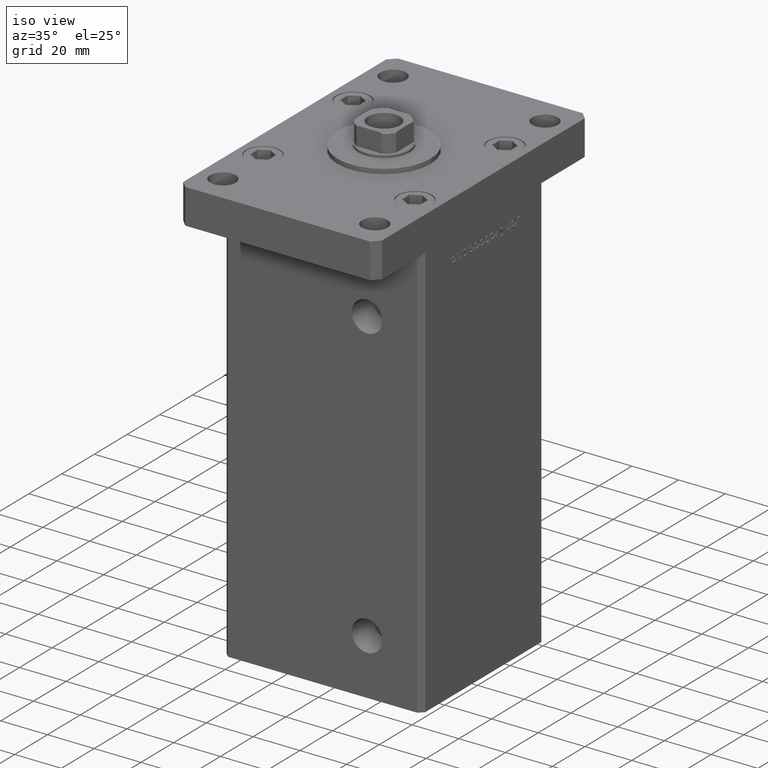
[diagram: clean part render]
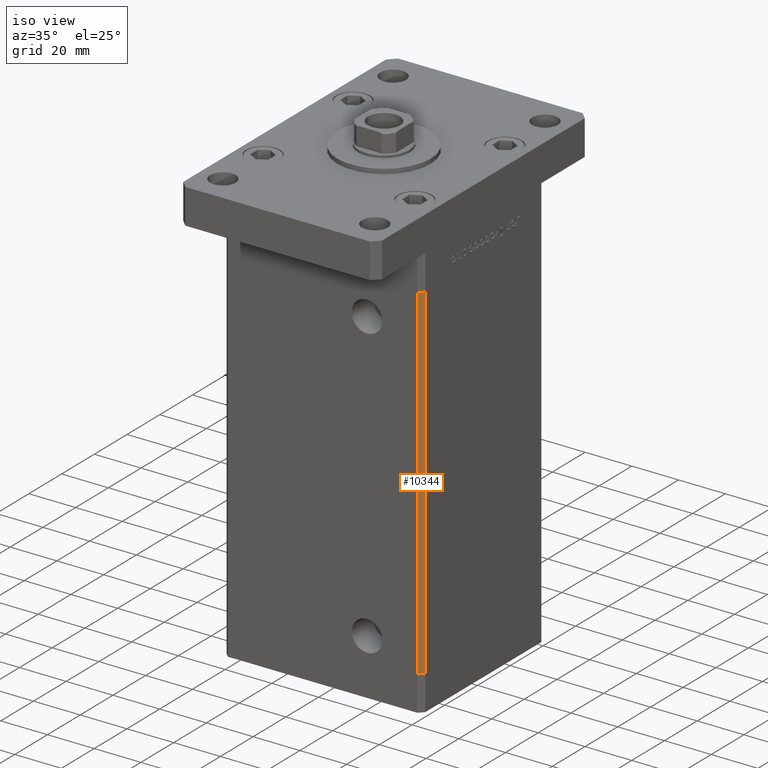
[diagram: same view with one face highlighted and labeled with its STEP entity id]
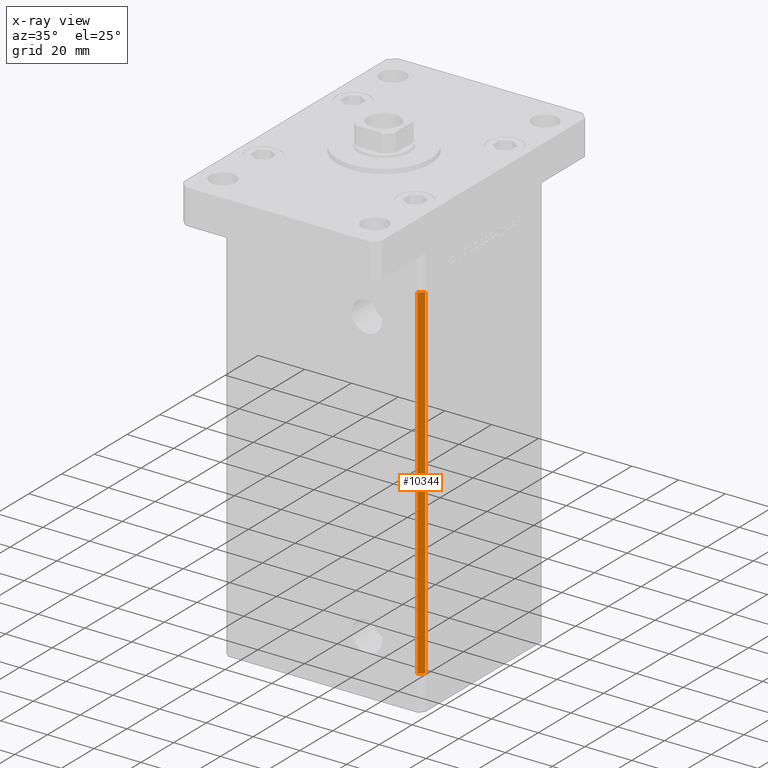
[diagram: x-ray of the same camera — body ghosted, the highlighted face saturated]
A machine part, iso view. The second image highlights one B-rep face of the part: STEP entity #10344.
The next image is the same camera in x-ray: the body ghosted, the highlighted face saturated — about 0% of this face is hidden behind the body in this view.
In plain terms, the highlighted planar face has unit normal (0.7071, -0.7071, 0).
Its self-contained STEP definition (entity closure, byte-faithful):
#476 = PLANE ( 'NONE',  #16497 ) ;
#5072 = DIRECTION ( 'NONE',  ( 0.7071067811865474617, 0.7071067811865474617, 0.000000000000000000 ) ) ;
#7932 = EDGE_LOOP ( 'NONE', ( #9299, #9609, #17998, #13705 ) ) ;
#8434 = CARTESIAN_POINT ( 'NONE',  ( 42.49999999999998579, -35.50000000000000711, 0.000000000000000000 ) ) ;
#8446 = VERTEX_POINT ( 'NONE', #31649 ) ;
#8800 = VERTEX_POINT ( 'NONE', #19051 ) ;
#9283 = CARTESIAN_POINT ( 'NONE',  ( 40.49999999999998579, -37.50000000000000711, 147.5000000000000000 ) ) ;
#9299 = ORIENTED_EDGE ( 'NONE', *, *, #24971, .F. ) ;
#9536 = LINE ( 'NONE', #9283, #13233 ) ;
#9609 = ORIENTED_EDGE ( 'NONE', *, *, #14758, .F. ) ;
#10344 = ADVANCED_FACE ( 'NONE', ( #12940 ), #476, .T. ) ;
#10455 = DIRECTION ( 'NONE',  ( -0.7071067811865474617, -0.7071067811865474617, 0.000000000000000000 ) ) ;
#12499 = LINE ( 'NONE', #8434, #41887 ) ;
#12940 = FACE_OUTER_BOUND ( 'NONE', #7932, .T. ) ;
#13233 = VECTOR ( 'NONE', #38829, 1000.000000000000000 ) ;
#13705 = ORIENTED_EDGE ( 'NONE', *, *, #21700, .T. ) ;
#14544 = CARTESIAN_POINT ( 'NONE',  ( 42.49999999999998579, -35.50000000000000711, 147.5000000000000000 ) ) ;
#14758 = EDGE_CURVE ( 'NONE', #22937, #8446, #40098, .T. ) ;
#16497 = AXIS2_PLACEMENT_3D ( 'NONE', #30288, #29755, #5072 ) ;
#17021 = CARTESIAN_POINT ( 'NONE',  ( 40.49999999999998579, -37.50000000000000711, 0.000000000000000000 ) ) ;
#17738 = VECTOR ( 'NONE', #10455, 1000.000000000000114 ) ;
#17967 = DIRECTION ( 'NONE',  ( -0.000000000000000000, -0.000000000000000000, -1.000000000000000000 ) ) ;
#17998 = ORIENTED_EDGE ( 'NONE', *, *, #31810, .T. ) ;
#19051 = CARTESIAN_POINT ( 'NONE',  ( 40.49999999999998579, -37.50000000000000711, 147.5000000000000000 ) ) ;
#21700 = EDGE_CURVE ( 'NONE', #8800, #33417, #9536, .T. ) ;
#22937 = VERTEX_POINT ( 'NONE', #44177 ) ;
#24971 = EDGE_CURVE ( 'NONE', #8446, #33417, #12499, .T. ) ;
#29049 = DIRECTION ( 'NONE',  ( -0.7071067811865474617, -0.7071067811865474617, 0.000000000000000000 ) ) ;
#29755 = DIRECTION ( 'NONE',  ( 0.7071067811865475727, -0.7071067811865475727, 0.000000000000000000 ) ) ;
#30288 = CARTESIAN_POINT ( 'NONE',  ( 42.49999999999998579, -35.50000000000000711, 147.5000000000000000 ) ) ;
#31649 = CARTESIAN_POINT ( 'NONE',  ( 42.49999999999998579, -35.50000000000000711, 0.000000000000000000 ) ) ;
#31810 = EDGE_CURVE ( 'NONE', #22937, #8800, #39498, .T. ) ;
#33417 = VERTEX_POINT ( 'NONE', #17021 ) ;
#38829 = DIRECTION ( 'NONE',  ( -0.000000000000000000, -0.000000000000000000, -1.000000000000000000 ) ) ;
#39498 = LINE ( 'NONE', #14544, #17738 ) ;
#40098 = LINE ( 'NONE', #47971, #49394 ) ;
#41887 = VECTOR ( 'NONE', #29049, 1000.000000000000114 ) ;
#44177 = CARTESIAN_POINT ( 'NONE',  ( 42.49999999999998579, -35.50000000000000711, 147.5000000000000000 ) ) ;
#47971 = CARTESIAN_POINT ( 'NONE',  ( 42.49999999999998579, -35.50000000000000711, 147.5000000000000000 ) ) ;
#49394 = VECTOR ( 'NONE', #17967, 1000.000000000000000 ) ;